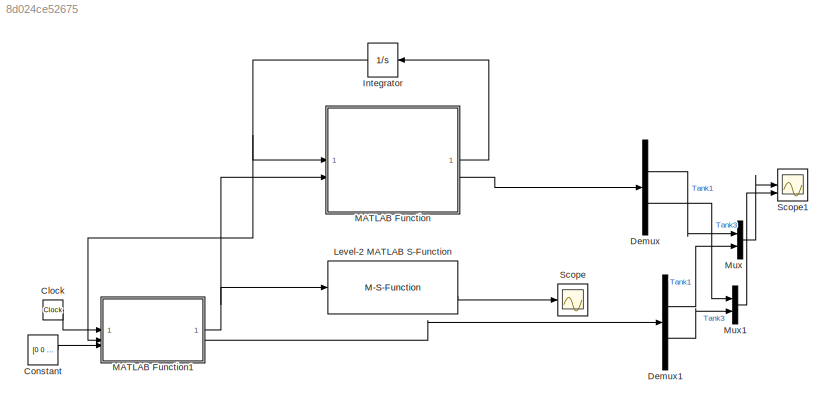
MODEL slx_8d024ce52675
KIND model
CONFIG AbsTol = auto
CONFIG EnableMultiTasking = off
CONFIG FixedStep = auto
CONFIG MaxStep = auto
CONFIG MinStep = auto
CONFIG RelTol = 1e-3
CONFIG SampleTimeConstraint = Unconstrained
CONFIG SolverName = VariableStepAuto
CONFIG StartTime = 0.0
CONFIG StopTime = 80
BLOCK [Clock] Clock
BLOCK [Constant] Constant
  Value = [0    0    0.2000    0.2500   80.0000   10.0000   10.0000]
BLOCK [Demux] Demux
  Outputs = 2
BLOCK [Demux] Demux1
  Outputs = 2
BLOCK [Integrator] Integrator
  InitialCondition = x0
  ZeroCross = off
BLOCK [M-S-Function] Level-2 MATLAB S-Function
  FunctionName = acon_dts_plant
  Parameters = x0
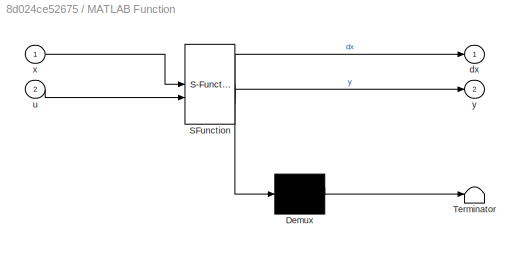
BLOCK [SubSystem] MATLAB Function
  ErrorFcn = Stateflow.Translate.translate
  PermitHierarchicalResolution = ExplicitOnly
  SFBlockType = MATLAB Function
  TreatAsAtomicUnit = on
BLOCK [Demux] MATLAB Function/ Demux 
  Outputs = 1
BLOCK [S-Function] MATLAB Function/ SFunction 
  EnableBusSupport = on
  FunctionName = sf_sfun
  Parameters = par
  PortCounts = [2 3]
  SFcnIsStateOwnerBlock = off
  SFunctionDeploymentMode = off
  Tag = Stateflow S-Function 2
BLOCK [Terminator] MATLAB Function/ Terminator 
BLOCK [Outport] MATLAB Function/dx
  VectorParamsAs1DForOutWhenUnconnected = off
BLOCK [Inport] MATLAB Function/u
  Port = 2
BLOCK [Inport] MATLAB Function/x
BLOCK [Outport] MATLAB Function/y
  Port = 2
  VectorParamsAs1DForOutWhenUnconnected = off
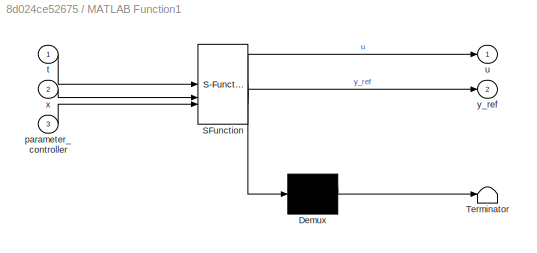
BLOCK [SubSystem] MATLAB Function1
  ErrorFcn = Stateflow.Translate.translate
  LibrarySourceBlock = simulink/User-Defined\nFunctions/MATLAB Function
  PermitHierarchicalResolution = ExplicitOnly
  SFBlockType = MATLAB Function
  TreatAsAtomicUnit = on
BLOCK [Demux] MATLAB Function1/ Demux 
  Outputs = 1
BLOCK [S-Function] MATLAB Function1/ SFunction 
  EnableBusSupport = on
  FunctionName = sf_sfun
  PortCounts = [3 3]
  SFcnIsStateOwnerBlock = off
  SFunctionDeploymentMode = off
  Tag = Stateflow S-Function 1
BLOCK [Terminator] MATLAB Function1/ Terminator 
BLOCK [Inport] MATLAB Function1/parameter_controller
  Port = 3
BLOCK [Inport] MATLAB Function1/t
BLOCK [Outport] MATLAB Function1/u
BLOCK [Inport] MATLAB Function1/x
  Port = 2
BLOCK [Outport] MATLAB Function1/y_ref
  Port = 2
BLOCK [Mux] Mux
  DisplayOption = bar
  Inputs = 2
BLOCK [Mux] Mux1
  DisplayOption = bar
  Inputs = 2
BLOCK [Scope] Scope
  Floating = off
  NumInputPorts = 1
  ScopeSpecificationString = Simulink.scopes.TimeScopeBlockCfg('CurrentConfiguration', extmgr.ConfigurationSet(extmgr.Configuration('Core','General UI',true),extmgr.Configuration('Core','Source UI',true),extmgr.Configuration('Sources','WiredSimulink',true),extmgr.Configuration('Visuals','Time Domain',true,'SerializedDisplays',{struct('MinYLimReal','-0.03125','MaxYLimReal','0.28125','YLabelReal','','MinYLimMag','0.00000','MaxY...<+1413ch>
BLOCK [Scope] Scope1
  Floating = off
  NumInputPorts = 3
  ScopeSpecificationString = Simulink.scopes.TimeScopeBlockCfg('CurrentConfiguration', extmgr.ConfigurationSet(extmgr.Configuration('Core','General UI',true),extmgr.Configuration('Core','Source UI',true),extmgr.Configuration('Sources','WiredSimulink',true,'DataLoggingVariableName','ScopeData1'),extmgr.Configuration('Visuals','Time Domain',true,'SerializedDisplays',{struct('MinYLimReal','-0.03125','MaxYLimReal','0.28125','YLab...<+1567ch>
LINE Clock:1 -> MATLAB Function1:1
LINE Constant:1 -> MATLAB Function1:3
LINE Demux1:1 -> Mux:2
LINE Demux1:2 -> Mux1:2
LINE Demux:1 -> Mux:1
LINE Demux:2 -> Mux1:1
NET Integrator:1 -> MATLAB Function1:2, MATLAB Function:1
LINE Level-2 MATLAB S-Function:2 -> Scope:1
NET MATLAB Function1:1 -> Level-2 MATLAB S-Function:1, MATLAB Function:2
LINE MATLAB Function1:2 -> Demux1:1
LINE MATLAB Function:1 -> Integrator:1
LINE MATLAB Function:2 -> Demux:1
LINE Mux1:1 -> Scope1:3
LINE Mux:1 -> Scope1:1
note: NET lines group one-source signal fan-out (src -> all destinations, sorted); 1:1 wires keep LINE
CHART MATLAB Function1 states=1 transitions=1
  STATE_LABEL 'eML_blk_kernel()'
  STATE_LABEL 'SCRIPT:\nfunction [u,y_ref]  = tank_ctrl(t,x, parameter_controller)\n   \n    x1 = x(1,:);\n    x2 = x(2,:);\n    x3 = x(3,:);\n    \n   y10 = parameter_controller(1);\n   y20 = parameter_controller(2);\n   y1T = parameter_controller(3);\n   y2T = parameter_controller(4);\n   T = parameter_controller(5);\n   p1 = parameter_controller(6);\n   p2 = parameter_controller(7);\n\n\n   u1 = (4377800396407898125*T^3*((55...<+1164ch>'
CHART MATLAB Function states=1 transitions=1
  STATE_LABEL 'eML_blk_kernel()'
  STATE_LABEL 'SCRIPT:\nfunction [dx, y] = fTank( x, u, par )\n    \n    % The water levels of the tanks x1,x2 and x3 represent the state \n    % variables of the system.\n    x1 = x(1);\n    x2 = x(2);\n    x3 = x(3);\n\n    % symbolic parameter values\n    % At is the cross sectional area of the tanks\n    % Av is the cross sectional area of the valves\n    % a12, a23, a10, a30I are the correction factors due to internal ...<+1266ch>'
CHART  states=0 transitions=0
CHART  states=0 transitions=0
